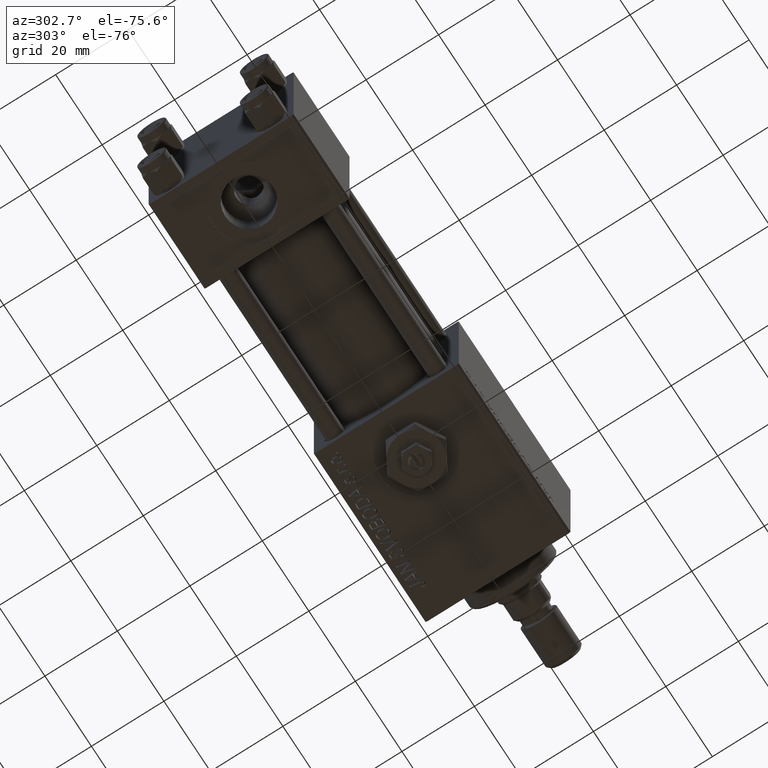
[diagram: clean part render]
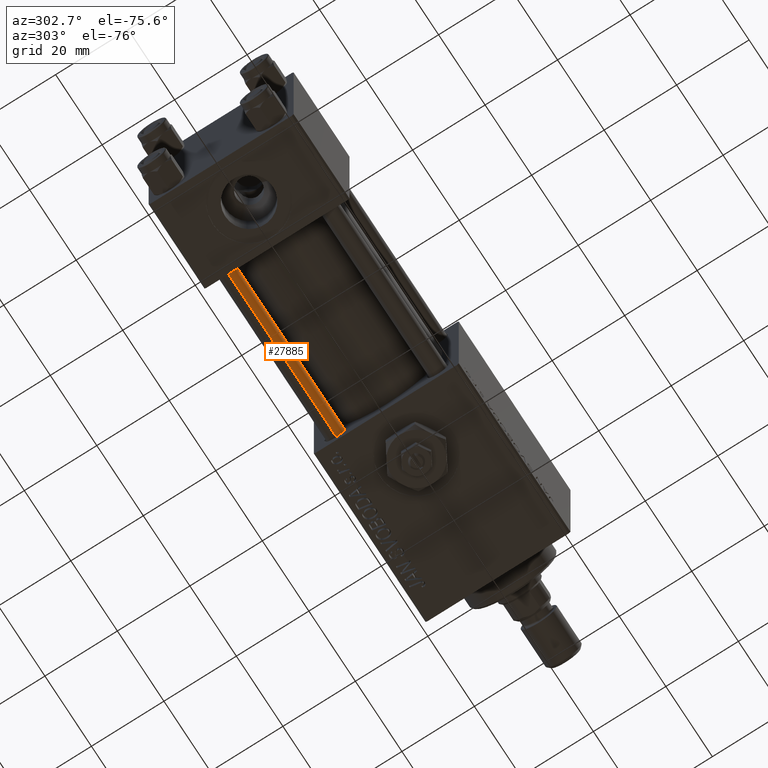
[diagram: same view with one face highlighted and labeled with its STEP entity id]
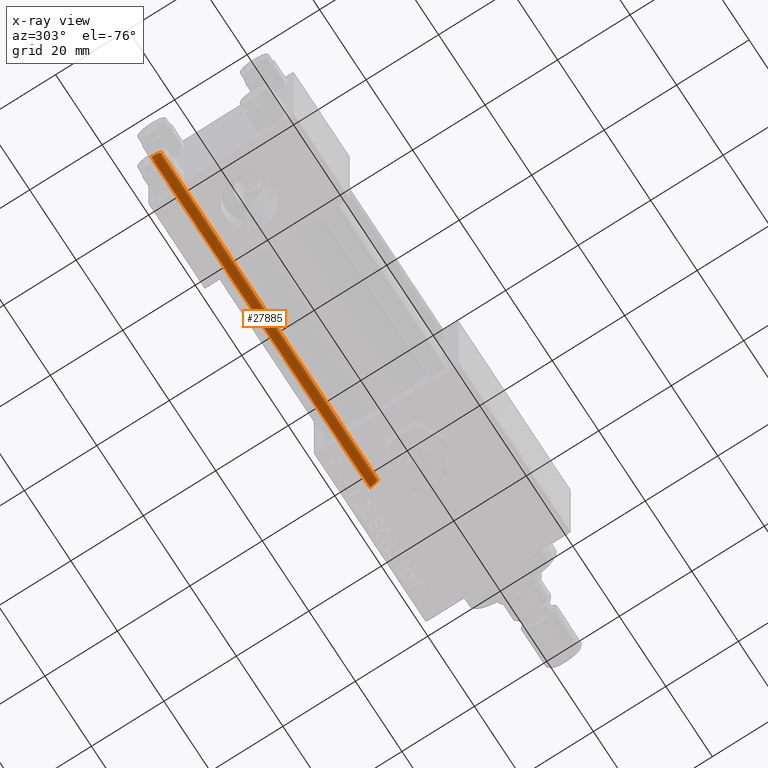
[diagram: x-ray of the same camera — body ghosted, the highlighted face saturated]
A machine part, auxiliary view. The second image highlights one B-rep face of the part: STEP entity #27885.
The next image is the same camera in x-ray: the body ghosted, the highlighted face saturated — about 0% of this face is hidden behind the body in this view.
In plain terms, the highlighted cylindrical surface (edge-blend (fillet) strip) has radius 2.5 mm, axis along (1, -0, 0).
Its self-contained STEP definition (entity closure, byte-faithful):
#324 = ORIENTED_EDGE ( 'NONE', *, *, #27638, .T. ) ;
#4666 = EDGE_CURVE ( 'NONE', #35484, #50797, #16641, .T. ) ;
#4935 = AXIS2_PLACEMENT_3D ( 'NONE', #19571, #10501, #39584 ) ;
#5795 = AXIS2_PLACEMENT_3D ( 'NONE', #46713, #38730, #27264 ) ;
#7141 = DIRECTION ( 'NONE',  ( -0.000000000000000000, -0.000000000000000000, -1.000000000000000000 ) ) ;
#7404 = CARTESIAN_POINT ( 'NONE',  ( -2.500000000000000000, 0.000000000000000000, 94.00000000000000000 ) ) ;
#8721 = VERTEX_POINT ( 'NONE', #20444 ) ;
#10501 = DIRECTION ( 'NONE',  ( 0.000000000000000000, 0.000000000000000000, -1.000000000000000000 ) ) ;
#11723 = CIRCLE ( 'NONE', #4935, 2.500000000000000000 ) ;
#13385 = DIRECTION ( 'NONE',  ( -0.000000000000000000, -0.000000000000000000, -1.000000000000000000 ) ) ;
#14618 = VECTOR ( 'NONE', #7141, 1000.000000000000000 ) ;
#14896 = LINE ( 'NONE', #7404, #14618 ) ;
#16641 = CIRCLE ( 'NONE', #44733, 2.500000000000000000 ) ;
#17231 = DIRECTION ( 'NONE',  ( 1.000000000000000000, 0.000000000000000000, 0.000000000000000000 ) ) ;
#17396 = LINE ( 'NONE', #25686, #22085 ) ;
#18836 = ORIENTED_EDGE ( 'NONE', *, *, #40208, .T. ) ;
#19571 = CARTESIAN_POINT ( 'NONE',  ( 0.000000000000000000, 0.000000000000000000, 93.50000000000001421 ) ) ;
#20444 = CARTESIAN_POINT ( 'NONE',  ( -2.500000000000000000, 0.000000000000000000, 93.50000000000001421 ) ) ;
#20598 = EDGE_LOOP ( 'NONE', ( #26093, #324, #18836, #30632 ) ) ;
#21724 = CARTESIAN_POINT ( 'NONE',  ( -2.500000000000000000, 0.000000000000000000, 0.5000000000000004441 ) ) ;
#22085 = VECTOR ( 'NONE', #13385, 1000.000000000000000 ) ;
#23301 = CARTESIAN_POINT ( 'NONE',  ( 2.500000000000000000, 3.061616997868383141E-16, 93.50000000000001421 ) ) ;
#23504 = CYLINDRICAL_SURFACE ( 'NONE', #5795, 2.500000000000000000 ) ;
#25686 = CARTESIAN_POINT ( 'NONE',  ( 2.500000000000000000, 3.061616997868383141E-16, 94.00000000000000000 ) ) ;
#26093 = ORIENTED_EDGE ( 'NONE', *, *, #52135, .F. ) ;
#27264 = DIRECTION ( 'NONE',  ( -1.000000000000000000, 0.000000000000000000, 0.000000000000000000 ) ) ;
#27638 = EDGE_CURVE ( 'NONE', #43488, #8721, #11723, .T. ) ;
#27885 = ADVANCED_FACE ( 'NONE', ( #51238 ), #23504, .T. ) ;
#30632 = ORIENTED_EDGE ( 'NONE', *, *, #4666, .T. ) ;
#33523 = DIRECTION ( 'NONE',  ( -0.000000000000000000, -0.000000000000000000, 1.000000000000000000 ) ) ;
#35484 = VERTEX_POINT ( 'NONE', #21724 ) ;
#38562 = CARTESIAN_POINT ( 'NONE',  ( 0.000000000000000000, 0.000000000000000000, 0.5000000000000004441 ) ) ;
#38730 = DIRECTION ( 'NONE',  ( -0.000000000000000000, -0.000000000000000000, -1.000000000000000000 ) ) ;
#39584 = DIRECTION ( 'NONE',  ( 1.000000000000000000, 0.000000000000000000, 0.000000000000000000 ) ) ;
#40208 = EDGE_CURVE ( 'NONE', #8721, #35484, #14896, .T. ) ;
#43488 = VERTEX_POINT ( 'NONE', #23301 ) ;
#44733 = AXIS2_PLACEMENT_3D ( 'NONE', #38562, #33523, #17231 ) ;
#46713 = CARTESIAN_POINT ( 'NONE',  ( 0.000000000000000000, 0.000000000000000000, 94.00000000000000000 ) ) ;
#50749 = CARTESIAN_POINT ( 'NONE',  ( 2.500000000000000000, 3.061616997868383141E-16, 0.5000000000000004441 ) ) ;
#50797 = VERTEX_POINT ( 'NONE', #50749 ) ;
#51238 = FACE_OUTER_BOUND ( 'NONE', #20598, .T. ) ;
#52135 = EDGE_CURVE ( 'NONE', #43488, #50797, #17396, .T. ) ;